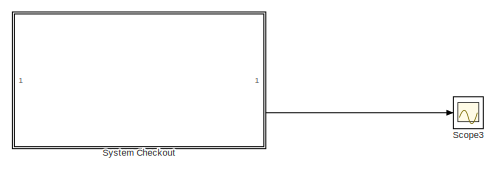
[diagram: root canvas - part 1/2, top center region]
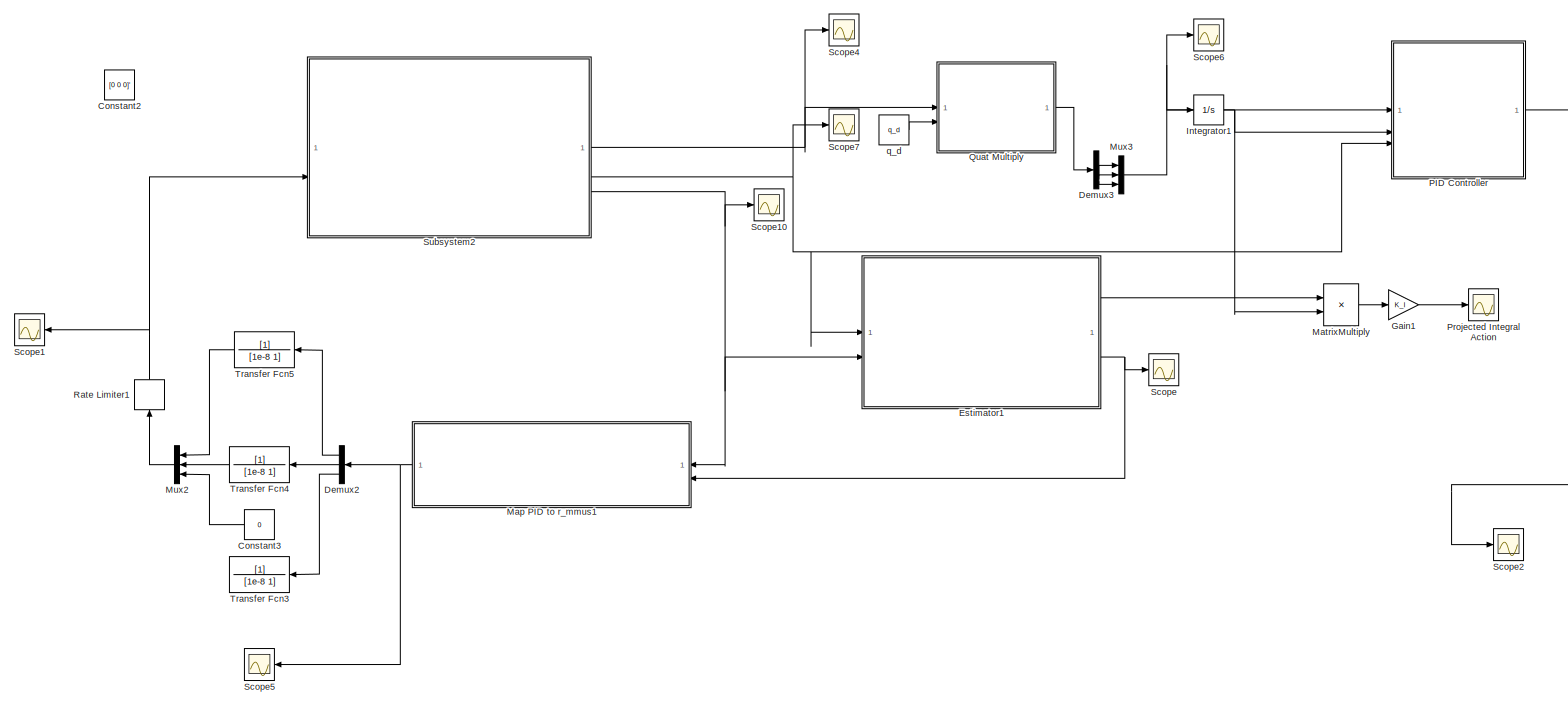
[diagram: root canvas - part 2/2, full width, middle band]
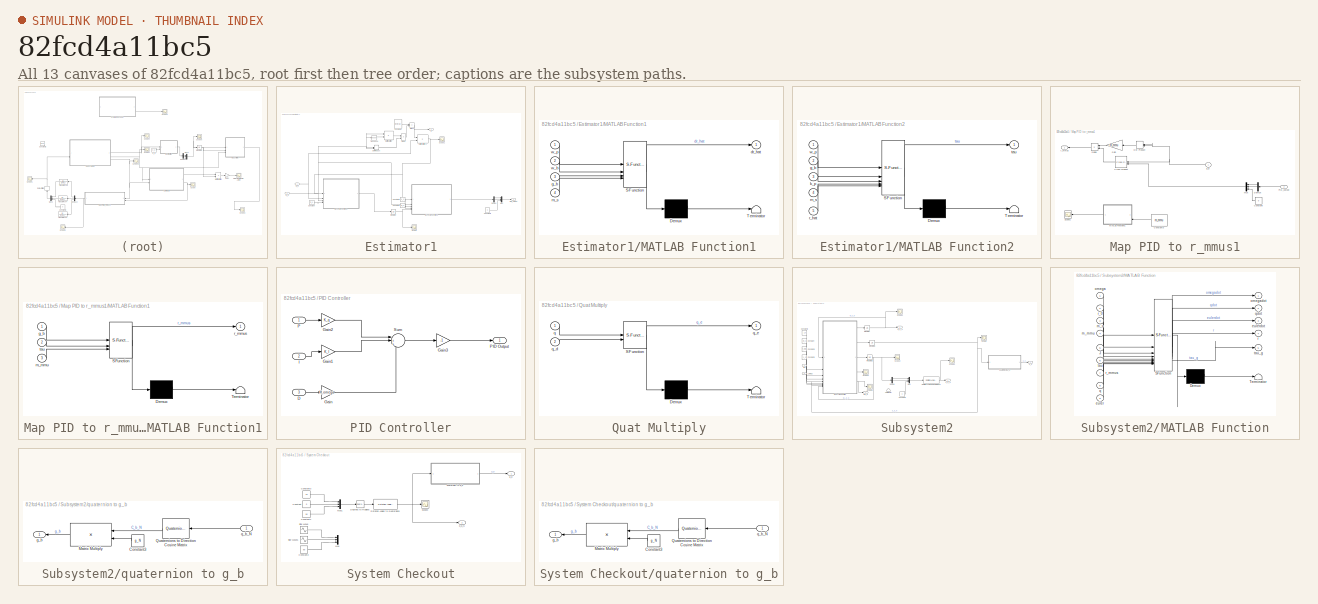
[diagram: thumbnail index - all 13 canvases of the model, root first then tree order]
MODEL slx_82fcd4a11bc5
KIND model
CONFIG AbsTol = auto
CONFIG EnableMultiTasking = off
CONFIG FixedStep = auto
CONFIG MaxStep = auto
CONFIG MinStep = auto
CONFIG RelTol = 1e-3
CONFIG SampleTimeConstraint = Unconstrained
CONFIG SolverName = ode15s
CONFIG StartTime = 0.0
CONFIG StopTime = t_sim
BLOCK [Constant] Constant2
  Value = [0 0 0]'
BLOCK [Constant] Constant3
  NameLocation = top
  Value = 0
BLOCK [Demux] Demux2
  NameLocation = top
  Outputs = 3
BLOCK [Demux] Demux3
BLOCK [SubSystem] Estimator1
BLOCK [Constant] Estimator1/Constant
  Value = m_s
BLOCK [Constant] Estimator1/Constant1
  Value = m_s
BLOCK [Constant] Estimator1/Constant2
  Value = k_p
BLOCK [Constant] Estimator1/Constant3
  Value = 0
BLOCK [Constant] Estimator1/Constant4
  Value = eye(3)
BLOCK [Demux] Estimator1/Demux
  Outputs = 3
BLOCK [Product] Estimator1/Divide
  Inputs = */
BLOCK [DotProduct] Estimator1/Dot Product
  OutDataTypeStr = Inherit: Inherit via internal rule
BLOCK [Integrator] Estimator1/Integrator
  InitialCondition = r_hat_0
BLOCK [SubSystem] Estimator1/MATLAB Function1
  ErrorFcn = Stateflow.Translate.translate
  PermitHierarchicalResolution = ExplicitOnly
  SFBlockType = MATLAB Function
  TreatAsAtomicUnit = on
BLOCK [Demux] Estimator1/MATLAB Function1/ Demux 
  Outputs = 1
BLOCK [S-Function] Estimator1/MATLAB Function1/ SFunction 
  EnableBusSupport = on
  FunctionName = sf_sfun
  PortCounts = [4 2]
  SFcnIsStateOwnerBlock = off
  SFunctionDeploymentMode = off
  Tag = Stateflow S-Function 9
BLOCK [Terminator] Estimator1/MATLAB Function1/ Terminator 
BLOCK [Outport] Estimator1/MATLAB Function1/dr_hat
BLOCK [Inport] Estimator1/MATLAB Function1/g_b
  Port = 3
BLOCK [Inport] Estimator1/MATLAB Function1/m_s
  Port = 4
BLOCK [Inport] Estimator1/MATLAB Function1/w_b
  Port = 2
BLOCK [Inport] Estimator1/MATLAB Function1/w_p
BLOCK [SubSystem] Estimator1/MATLAB Function2
  ErrorFcn = Stateflow.Translate.translate
  PermitHierarchicalResolution = ExplicitOnly
  SFBlockType = MATLAB Function
  TreatAsAtomicUnit = on
BLOCK [Demux] Estimator1/MATLAB Function2/ Demux 
  Outputs = 1
BLOCK [S-Function] Estimator1/MATLAB Function2/ SFunction 
  EnableBusSupport = on
  FunctionName = sf_sfun
  PortCounts = [5 2]
  SFcnIsStateOwnerBlock = off
  SFunctionDeploymentMode = off
  Tag = Stateflow S-Function 8
BLOCK [Terminator] Estimator1/MATLAB Function2/ Terminator 
BLOCK [Inport] Estimator1/MATLAB Function2/g_b
  Port = 2
BLOCK [Inport] Estimator1/MATLAB Function2/k_p
  Port = 3
BLOCK [Inport] Estimator1/MATLAB Function2/m_s
  Port = 4
BLOCK [Inport] Estimator1/MATLAB Function2/r_hat
  Port = 5
BLOCK [Outport] Estimator1/MATLAB Function2/tau
BLOCK [Inport] Estimator1/MATLAB Function2/w_p
BLOCK [Product] Estimator1/MatrixMultiply
  Multiplication = Matrix(*)
BLOCK [Product] Estimator1/MatrixMultiply1
  Multiplication = Matrix(*)
BLOCK [Sum] Estimator1/Minus
  IconShape = rectangular
  Inputs = +-
BLOCK [Mux] Estimator1/Mux
  DisplayOption = bar
  Inputs = 3
BLOCK [Outport] Estimator1/P
BLOCK [Outport] Estimator1/PID_output
  Port = 2
BLOCK [Scope] Estimator1/Scope
  Floating = off
  NumInputPorts = 1
  ScopeSpecificationString = Simulink.scopes.TimeScopeBlockCfg('CurrentConfiguration', extmgr.ConfigurationSet(extmgr.Configuration('Core','General UI',true),extmgr.Configuration('Core','Source UI',true),extmgr.Configuration('Sources','WiredSimulink',true,'DataLoggingVariableName','ScopeData2'),extmgr.Configuration('Visuals','Time Domain',true,'SerializedDisplays',{struct('MinYLimReal','-36.35891','MaxYLimReal','326.77194','Y...<+1584ch>
BLOCK [Scope] Estimator1/Scope1
  Floating = off
  NumInputPorts = 1
  ScopeSpecificationString = Simulink.scopes.TimeScopeBlockCfg('CurrentConfiguration', extmgr.ConfigurationSet(extmgr.Configuration('Core','General UI',true),extmgr.Configuration('Core','Source UI',true),extmgr.Configuration('Sources','WiredSimulink',true,'DataLoggingVariableName','ScopeData3'),extmgr.Configuration('Visuals','Time Domain',true,'SerializedDisplays',{struct('MinYLimReal','-1.22598','MaxYLimReal','1.21547','YLab...<+1573ch>
BLOCK [Math] Estimator1/Transpose
  Operator = transpose
BLOCK [Inport] Estimator1/g_b
  Port = 2
BLOCK [Inport] Estimator1/w_b
BLOCK [Gain] Gain1
  Gain = K_I
BLOCK [Integrator] Integrator1
  InitialCondition = [0,0,0]'
BLOCK [SubSystem] Map PID to r_mmus1
BLOCK [Constant] Map PID to r_mmus1/Constant
  NameLocation = top
  Value = 0
BLOCK [Constant] Map PID to r_mmus1/Constant3
  Commented = on
  NameLocation = top
  Value = m_mmu
BLOCK [Reference] Map PID to r_mmus1/Cross Product  REF=matrix_library/Cross Product
  LibrarySourceBlock = simulink/Matrix\nOperations/Cross Product
  NameLocation = top
  SourceBlock = matrix_library/Cross Product
  SourceType = CrossProduct
BLOCK [Demux] Map PID to r_mmus1/Demux
  NameLocation = top
  Outputs = 3
BLOCK [Product] Map PID to r_mmus1/Divide
  Inputs = /*
  NameLocation = top
BLOCK [DotProduct] Map PID to r_mmus1/Dot Product
  NameLocation = top
  OutDataTypeStr = Inherit: Inherit via internal rule
BLOCK [Gain] Map PID to r_mmus1/Gain
  Gain = m_mmu
  NameLocation = top
BLOCK [SubSystem] Map PID to r_mmus1/MATLAB Function1
  Commented = on
  ErrorFcn = Stateflow.Translate.translate
  NameLocation = top
  PermitHierarchicalResolution = ExplicitOnly
  SFBlockType = MATLAB Function
  TreatAsAtomicUnit = on
BLOCK [Demux] Map PID to r_mmus1/MATLAB Function1/ Demux 
  Outputs = 1
BLOCK [S-Function] Map PID to r_mmus1/MATLAB Function1/ SFunction 
  EnableBusSupport = on
  FunctionName = sf_sfun
  PortCounts = [3 2]
  SFcnIsStateOwnerBlock = off
  SFunctionDeploymentMode = off
  Tag = Stateflow S-Function 1
BLOCK [Terminator] Map PID to r_mmus1/MATLAB Function1/ Terminator 
BLOCK [Inport] Map PID to r_mmus1/MATLAB Function1/g_b
BLOCK [Inport] Map PID to r_mmus1/MATLAB Function1/m_mmu
  Port = 3
BLOCK [Outport] Map PID to r_mmus1/MATLAB Function1/r_mmus
BLOCK [Inport] Map PID to r_mmus1/MATLAB Function1/tau
  Port = 2
BLOCK [Mux] Map PID to r_mmus1/Mux
  DisplayOption = bar
  Inputs = 3
  NameLocation = top
BLOCK [Inport] Map PID to r_mmus1/PID_output
  Port = 2
BLOCK [Scope] Map PID to r_mmus1/Scope1
  Commented = on
  Floating = off
  NameLocation = top
  NumInputPorts = 1
  ScopeSpecificationString = Simulink.scopes.TimeScopeBlockCfg('CurrentConfiguration', extmgr.ConfigurationSet(extmgr.Configuration('Core','General UI',true),extmgr.Configuration('Core','Source UI',true),extmgr.Configuration('Sources','WiredSimulink',true,'DataLoggingVariableName','ScopeData2'),extmgr.Configuration('Visuals','Time Domain',true,'SerializedDisplays',{struct('MinYLimReal','-0.07872','MaxYLimReal','0.00875','YLab...<+1537ch>
BLOCK [Inport] Map PID to r_mmus1/g_b
BLOCK [Outport] Map PID to r_mmus1/r_mmus
BLOCK [Product] MatrixMultiply
  Multiplication = Matrix(*)
BLOCK [Mux] Mux2
  DisplayOption = bar
  Inputs = 3
  NameLocation = top
BLOCK [Mux] Mux3
  DisplayOption = bar
  Inputs = 3
BLOCK [SubSystem] PID Controller
BLOCK [Inport] PID Controller/D
  Port = 3
BLOCK [Gain] PID Controller/Gain
  Gain = K_omega
BLOCK [Gain] PID Controller/Gain1
  Gain = K_I
BLOCK [Gain] PID Controller/Gain2
  Gain = K_q
BLOCK [Gain] PID Controller/Gain3
  Gain = -1
BLOCK [Inport] PID Controller/I
  Port = 2
BLOCK [Inport] PID Controller/P
BLOCK [Outport] PID Controller/PID Output
BLOCK [Sum] PID Controller/Sum
  Inputs = |+++
BLOCK [Scope] Projected Integral Action
  Floating = off
  NumInputPorts = 1
  ScopeSpecificationString = Simulink.scopes.TimeScopeBlockCfg('CurrentConfiguration', extmgr.ConfigurationSet(extmgr.Configuration('Core','General UI',true),extmgr.Configuration('Core','Source UI',true),extmgr.Configuration('Sources','WiredSimulink',true,'DataLoggingVariableName','ScopeData3'),extmgr.Configuration('Visuals','Time Domain',true,'SerializedDisplays',{struct('MinYLimReal','-132.65379','MaxYLimReal','124.05273','...<+1555ch>
BLOCK [SubSystem] Quat Multiply
  ErrorFcn = Stateflow.Translate.translate
  PermitHierarchicalResolution = ExplicitOnly
  SFBlockType = MATLAB Function
  TreatAsAtomicUnit = on
BLOCK [Demux] Quat Multiply/ Demux 
  Outputs = 1
BLOCK [S-Function] Quat Multiply/ SFunction 
  EnableBusSupport = on
  FunctionName = sf_sfun
  PortCounts = [2 2]
  SFcnIsStateOwnerBlock = off
  SFunctionDeploymentMode = off
  Tag = Stateflow S-Function 3
BLOCK [Terminator] Quat Multiply/ Terminator 
BLOCK [Inport] Quat Multiply/q
BLOCK [Inport] Quat Multiply/q_d
  Port = 2
BLOCK [Outport] Quat Multiply/q_e
BLOCK [RateLimiter] Rate Limiter1
  FallingSlewLimit = -0.030
  NameLocation = right
  RisingSlewLimit = 0.030
  SampleTimeMode = inherited
BLOCK [Scope] Scope
  Floating = off
  NumInputPorts = 1
  ScopeSpecificationString = Simulink.scopes.TimeScopeBlockCfg('CurrentConfiguration', extmgr.ConfigurationSet(extmgr.Configuration('Core','General UI',true),extmgr.Configuration('Core','Source UI',true),extmgr.Configuration('Sources','WiredSimulink',true,'DataLoggingVariableName','ScopeData1'),extmgr.Configuration('Visuals','Time Domain',true,'SerializedDisplays',{struct('MinYLimReal','-81064.64447','MaxYLimReal','82089.2197...<+1737ch>
BLOCK [Scope] Scope1
  Floating = off
  NameLocation = top
  NumInputPorts = 1
  ScopeSpecificationString = Simulink.scopes.TimeScopeBlockCfg('CurrentConfiguration', extmgr.ConfigurationSet(extmgr.Configuration('Core','General UI',true),extmgr.Configuration('Core','Source UI',true),extmgr.Configuration('Sources','WiredSimulink',true,'DataLoggingVariableName','r_mmus','DataLogging',true,'DataLoggingSaveFormat','StructureWithTime'),extmgr.Configuration('Visuals','Time Domain',true,'SerializedDisplays',{st...<+1595ch>
BLOCK [Scope] Scope10
  Floating = off
  NumInputPorts = 1
  ScopeSpecificationString = Simulink.scopes.TimeScopeBlockCfg('CurrentConfiguration', extmgr.ConfigurationSet(extmgr.Configuration('Core','General UI',true),extmgr.Configuration('Core','Source UI',true),extmgr.Configuration('Sources','WiredSimulink',true,'DataLoggingVariableName','ScopeData5'),extmgr.Configuration('Visuals','Time Domain',true,'SerializedDisplays',{struct('MinYLimReal','-12.02857','MaxYLimReal','10.15939','YL...<+1576ch>
BLOCK [Scope] Scope2
  Floating = off
  NumInputPorts = 1
  ScopeSpecificationString = Simulink.scopes.TimeScopeBlockCfg('CurrentConfiguration', extmgr.ConfigurationSet(extmgr.Configuration('Core','General UI',true),extmgr.Configuration('Core','Source UI',true),extmgr.Configuration('Sources','WiredSimulink',true,'DataLoggingVariableName','ScopeData1'),extmgr.Configuration('Visuals','Time Domain',true,'SerializedDisplays',{struct('MinYLimReal','-88.364','MaxYLimReal','148.98158','YLa...<+1587ch>
BLOCK [Scope] Scope3
  Commented = on
  Floating = off
  NumInputPorts = 1
  ScopeSpecificationString = Simulink.scopes.TimeScopeBlockCfg('CurrentConfiguration', extmgr.ConfigurationSet(extmgr.Configuration('Core','General UI',true),extmgr.Configuration('Core','Source UI',true),extmgr.Configuration('Sources','WiredSimulink',true,'DataLoggingVariableName','ScopeData1'),extmgr.Configuration('Visuals','Time Domain',true,'SerializedDisplays',{struct('MinYLimReal','-0.15738','MaxYLimReal','0.80017','YLab...<+1754ch>
BLOCK [Scope] Scope4
  Floating = off
  NumInputPorts = 1
  ScopeSpecificationString = Simulink.scopes.TimeScopeBlockCfg('CurrentConfiguration', extmgr.ConfigurationSet(extmgr.Configuration('Core','General UI',true),extmgr.Configuration('Core','Source UI',true),extmgr.Configuration('Sources','WiredSimulink',true,'DataLoggingVariableName','ScopeData3'),extmgr.Configuration('Visuals','Time Domain',true,'SerializedDisplays',{struct('MinYLimReal','-0.89035','MaxYLimReal','1.21','YLabelR...<+1569ch>
BLOCK [Scope] Scope5
  Floating = off
  NameLocation = top
  NumInputPorts = 1
  ScopeSpecificationString = Simulink.scopes.TimeScopeBlockCfg('CurrentConfiguration', extmgr.ConfigurationSet(extmgr.Configuration('Core','General UI',true),extmgr.Configuration('Core','Source UI',true),extmgr.Configuration('Sources','WiredSimulink',true,'DataLoggingVariableName','ScopeData2'),extmgr.Configuration('Visuals','Time Domain',true,'SerializedDisplays',{struct('MinYLimReal','-447.21945','MaxYLimReal','3300.05194',...<+1532ch>
BLOCK [Scope] Scope6
  Floating = off
  NumInputPorts = 1
  ScopeSpecificationString = Simulink.scopes.TimeScopeBlockCfg('CurrentConfiguration', extmgr.ConfigurationSet(extmgr.Configuration('Core','General UI',true),extmgr.Configuration('Core','Source UI',true),extmgr.Configuration('Sources','WiredSimulink',true,'DataLoggingVariableName','ScopeData1'),extmgr.Configuration('Visuals','Time Domain',true,'SerializedDisplays',{struct('MinYLimReal','-0.81616','MaxYLimReal','0.54233','YLab...<+1544ch>
BLOCK [Scope] Scope7
  Floating = off
  NumInputPorts = 1
  ScopeSpecificationString = Simulink.scopes.TimeScopeBlockCfg('CurrentConfiguration', extmgr.ConfigurationSet(extmgr.Configuration('Core','General UI',true),extmgr.Configuration('Core','Source UI',true),extmgr.Configuration('Sources','WiredSimulink',true,'DataLoggingVariableName','ScopeData2'),extmgr.Configuration('Visuals','Time Domain',true,'SerializedDisplays',{struct('MinYLimReal','-1.22815','MaxYLimReal','1.22997','YLab...<+1576ch>
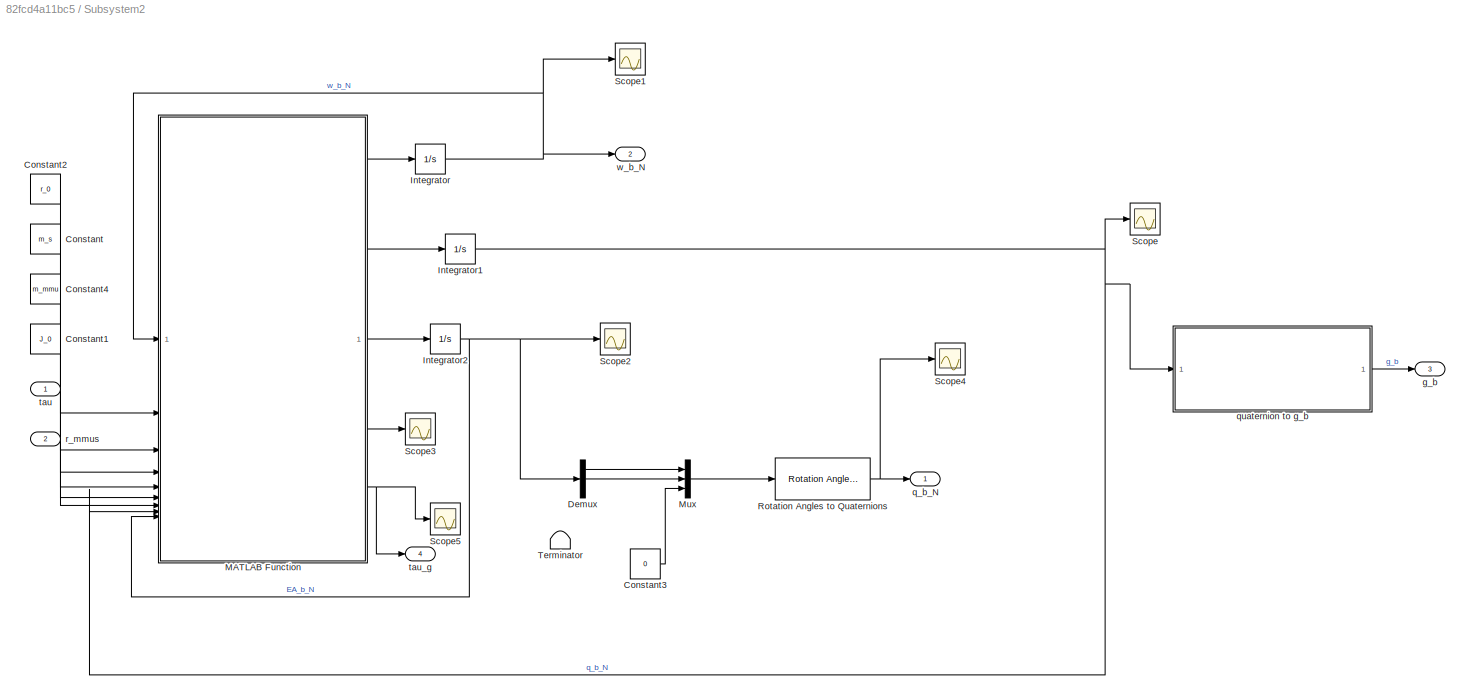
BLOCK [SubSystem] Subsystem2
BLOCK [Constant] Subsystem2/Constant
  Value = m_s
BLOCK [Constant] Subsystem2/Constant1
  Value = J_0
BLOCK [Constant] Subsystem2/Constant2
  Value = r_0
BLOCK [Constant] Subsystem2/Constant3
  Value = 0
BLOCK [Constant] Subsystem2/Constant4
  Value = m_mmu
BLOCK [Demux] Subsystem2/Demux
  Outputs = 3
BLOCK [Integrator] Subsystem2/Integrator
  InitialCondition = omega_0
BLOCK [Integrator] Subsystem2/Integrator1
  InitialCondition = q_0
  NameLocation = top
BLOCK [Integrator] Subsystem2/Integrator2
  InitialCondition = EA_0
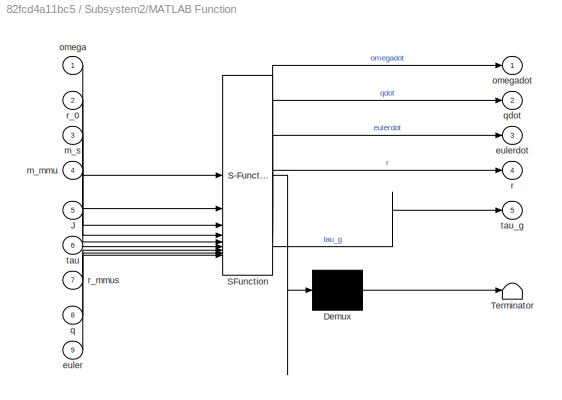
BLOCK [SubSystem] Subsystem2/MATLAB Function
  ErrorFcn = Stateflow.Translate.translate
  PermitHierarchicalResolution = ExplicitOnly
  SFBlockType = MATLAB Function
  TreatAsAtomicUnit = on
BLOCK [Demux] Subsystem2/MATLAB Function/ Demux 
  Outputs = 1
BLOCK [S-Function] Subsystem2/MATLAB Function/ SFunction 
  EnableBusSupport = on
  FunctionName = sf_sfun
  PortCounts = [9 6]
  SFcnIsStateOwnerBlock = off
  SFunctionDeploymentMode = off
  Tag = Stateflow S-Function 4
BLOCK [Terminator] Subsystem2/MATLAB Function/ Terminator 
BLOCK [Inport] Subsystem2/MATLAB Function/J
  Port = 5
BLOCK [Inport] Subsystem2/MATLAB Function/euler
  Port = 9
BLOCK [Outport] Subsystem2/MATLAB Function/eulerdot
  Port = 3
BLOCK [Inport] Subsystem2/MATLAB Function/m_mmu
  Port = 4
BLOCK [Inport] Subsystem2/MATLAB Function/m_s
  Port = 3
BLOCK [Inport] Subsystem2/MATLAB Function/omega
BLOCK [Outport] Subsystem2/MATLAB Function/omegadot
BLOCK [Inport] Subsystem2/MATLAB Function/q
  Port = 8
BLOCK [Outport] Subsystem2/MATLAB Function/qdot
  Port = 2
BLOCK [Outport] Subsystem2/MATLAB Function/r
  Port = 4
BLOCK [Inport] Subsystem2/MATLAB Function/r_0
  Port = 2
BLOCK [Inport] Subsystem2/MATLAB Function/r_mmus
  Port = 7
BLOCK [Inport] Subsystem2/MATLAB Function/tau
  Port = 6
BLOCK [Outport] Subsystem2/MATLAB Function/tau_g
  Port = 5
BLOCK [Mux] Subsystem2/Mux
  DisplayOption = bar
  Inputs = 3
BLOCK [Reference] Subsystem2/Rotation Angles to Quaternions  REF=sharedtransform/Rotation Angles to Quaternions
  AttributesFormatString = Rotation Order: %<rotationOrder>
  LibrarySourceBlock = aerolibtransform2/Rotation Angles to Quaternions
  SourceBlock = sharedtransform/Rotation Angles to Quaternions
  SourceType = Ang2Quat
BLOCK [Scope] Subsystem2/Scope
  Floating = off
  NumInputPorts = 1
  ScopeSpecificationString = Simulink.scopes.TimeScopeBlockCfg('CurrentConfiguration', extmgr.ConfigurationSet(extmgr.Configuration('Core','General UI',true),extmgr.Configuration('Core','Source UI',true),extmgr.Configuration('Sources','WiredSimulink',true,'DataLogging',true,'DataLoggingVariableName','q_b_N','DataLoggingSaveFormat','StructureWithTime'),extmgr.Configuration('Visuals','Time Domain',true,'SerializedDisplays',{str...<+1598ch>
BLOCK [Scope] Subsystem2/Scope1
  Floating = off
  NumInputPorts = 1
  ScopeSpecificationString = Simulink.scopes.TimeScopeBlockCfg('CurrentConfiguration', extmgr.ConfigurationSet(extmgr.Configuration('Core','General UI',true),extmgr.Configuration('Core','Source UI',true),extmgr.Configuration('Sources','WiredSimulink',true,'DataLoggingVariableName','ScopeData1'),extmgr.Configuration('Visuals','Time Domain',true,'SerializedDisplays',{struct('MinYLimReal','-1.14331','MaxYLimReal','1.14978','YLab...<+1573ch>
BLOCK [Scope] Subsystem2/Scope2
  Floating = off
  NumInputPorts = 1
  ScopeSpecificationString = Simulink.scopes.TimeScopeBlockCfg('CurrentConfiguration', extmgr.ConfigurationSet(extmgr.Configuration('Core','General UI',true),extmgr.Configuration('Core','Source UI',true),extmgr.Configuration('Sources','WiredSimulink',true,'DataLoggingVariableName','EA_b_N','DataLogging',true,'DataLoggingSaveFormat','StructureWithTime'),extmgr.Configuration('Visuals','Time Domain',true,'SerializedDisplays',{st...<+1624ch>
BLOCK [Scope] Subsystem2/Scope3
  Floating = off
  NumInputPorts = 1
  ScopeSpecificationString = Simulink.scopes.TimeScopeBlockCfg('CurrentConfiguration', extmgr.ConfigurationSet(extmgr.Configuration('Core','General UI',true),extmgr.Configuration('Core','Source UI',true),extmgr.Configuration('Sources','WiredSimulink',true,'DataLoggingVariableName','r_b','DataLogging',true,'DataLoggingSaveFormat','StructureWithTime'),extmgr.Configuration('Visuals','Time Domain',true,'SerializedDisplays',{struc...<+1615ch>
BLOCK [Scope] Subsystem2/Scope4
  Floating = off
  NumInputPorts = 1
  ScopeSpecificationString = Simulink.scopes.TimeScopeBlockCfg('CurrentConfiguration', extmgr.ConfigurationSet(extmgr.Configuration('Core','General UI',true),extmgr.Configuration('Core','Source UI',true),extmgr.Configuration('Sources','WiredSimulink',true,'DataLoggingVariableName','ScopeData2'),extmgr.Configuration('Visuals','Time Domain',true,'SerializedDisplays',{struct('MinYLimReal','-0.22241','MaxYLimReal','1.13582','YLab...<+1627ch>
BLOCK [Scope] Subsystem2/Scope5
  Floating = off
  NumInputPorts = 1
  ScopeSpecificationString = Simulink.scopes.TimeScopeBlockCfg('CurrentConfiguration', extmgr.ConfigurationSet(extmgr.Configuration('Core','General UI',true),extmgr.Configuration('Core','Source UI',true),extmgr.Configuration('Sources','WiredSimulink',true,'DataLoggingVariableName','ScopeData1'),extmgr.Configuration('Visuals','Time Domain',true,'SerializedDisplays',{struct('MinYLimReal','-3.13148','MaxYLimReal','3.59611','YLab...<+1673ch>
BLOCK [Terminator] Subsystem2/Terminator
BLOCK [Outport] Subsystem2/g_b
  Port = 3
BLOCK [Outport] Subsystem2/q_b_N
BLOCK [SubSystem] Subsystem2/quaternion to g_b
  NameLocation = top
BLOCK [Constant] Subsystem2/quaternion to g_b/Constant3
  NameLocation = top
  Value = g_N
BLOCK [Product] Subsystem2/quaternion to g_b/Matrix Multiply
  Multiplication = Matrix(*)
  NameLocation = top
BLOCK [Reference] Subsystem2/quaternion to g_b/Quaternions to Direction Cosine Matrix  REF=sharedtransform/Quaternions to 
Direction Cosine Matrix
  NameLocation = top
  SourceBlock = sharedtransform/Quaternions to \nDirection Cosine Matrix
  SourceType = Quaternion2DCM
BLOCK [Outport] Subsystem2/quaternion to g_b/g_b
  NameLocation = top
BLOCK [Inport] Subsystem2/quaternion to g_b/q_b_N
  NameLocation = top
BLOCK [Inport] Subsystem2/r_mmus
  Port = 2
BLOCK [Inport] Subsystem2/tau
BLOCK [Outport] Subsystem2/tau_g
  Port = 4
BLOCK [Outport] Subsystem2/w_b_N
  Port = 2
BLOCK [SubSystem] System Checkout
  Commented = on
BLOCK [Constant] System Checkout/Constant
  Value = 0
BLOCK [Constant] System Checkout/Constant1
  Value = 90
BLOCK [Constant] System Checkout/Constant2
  Commented = on
  Value = 90
BLOCK [Constant] System Checkout/Constant3
  Value = 10
BLOCK [Reference] System Checkout/Degrees to Radians  REF=simulink_extras/Transformations/Degrees to
Radians
  SourceBlock = simulink_extras/Transformations/Degrees to\nRadians
  SourceType = DegreesToRadians
BLOCK [Mux] System Checkout/Mux
  Commented = on
  DisplayOption = bar
  Inputs = 3
BLOCK [Mux] System Checkout/Mux1
  DisplayOption = bar
  Inputs = 3
BLOCK [Reference] System Checkout/Rotation Angles to Quaternions  REF=sharedtransform/Rotation Angles to Quaternions
  AttributesFormatString = Rotation Order: %<rotationOrder>
  LibrarySourceBlock = aerolibtransform2/Rotation Angles to Quaternions
  SourceBlock = sharedtransform/Rotation Angles to Quaternions
  SourceType = Ang2Quat
BLOCK [Scope] System Checkout/Scope3
  Floating = off
  NumInputPorts = 1
  ScopeSpecificationString = Simulink.scopes.TimeScopeBlockCfg('CurrentConfiguration', extmgr.ConfigurationSet(extmgr.Configuration('Core','General UI',true),extmgr.Configuration('Core','Source UI',true),extmgr.Configuration('Sources','WiredSimulink',true,'DataLoggingVariableName','ScopeData2'),extmgr.Configuration('Visuals','Time Domain',true,'SerializedDisplays',{struct('MinYLimReal','-0.15738','MaxYLimReal','0.80017','YLab...<+1796ch>
BLOCK [Sin] System Checkout/Sine Wave
  Amplitude = 90
  Commented = on
  Frequency = (2*pi/2)/10
  Offset = 0.1
  SampleTime = 0.0125
  Samples = 50
  SineType = Sample based
BLOCK [Sin] System Checkout/Sine Wave1
  Amplitude = 0
  Commented = on
  Frequency = (2*pi/2)/10
  SampleTime = 0.1
  Samples = 50
  SineType = Sample based
BLOCK [Outport] System Checkout/g_b
BLOCK [Outport] System Checkout/q_b_N
  Port = 2
BLOCK [SubSystem] System Checkout/quaternion to g_b
  NameLocation = top
BLOCK [Constant] System Checkout/quaternion to g_b/Constant3
  NameLocation = top
  Value = g_N
BLOCK [Product] System Checkout/quaternion to g_b/Matrix Multiply
  Multiplication = Matrix(*)
  NameLocation = top
BLOCK [Reference] System Checkout/quaternion to g_b/Quaternions to Direction Cosine Matrix  REF=sharedtransform/Quaternions to 
Direction Cosine Matrix
  NameLocation = top
  SourceBlock = sharedtransform/Quaternions to \nDirection Cosine Matrix
  SourceType = Quaternion2DCM
BLOCK [Outport] System Checkout/quaternion to g_b/g_b
  NameLocation = top
BLOCK [Inport] System Checkout/quaternion to g_b/q_b_N
  NameLocation = top
BLOCK [TransferFcn] Transfer Fcn3
  Denominator = [1e-8 1]
  NameLocation = top
BLOCK [TransferFcn] Transfer Fcn4
  Denominator = [1e-8 1]
  NameLocation = top
BLOCK [TransferFcn] Transfer Fcn5
  Denominator = [1e-8 1]
  NameLocation = top
BLOCK [Constant] q_d
  Value = q_d
LINE Constant3:1 -> Mux2:3
LINE Demux2:1 -> Transfer Fcn5:1
LINE Demux2:2 -> Transfer Fcn4:1
LINE Demux2:3 -> Transfer Fcn3:1
LINE Demux3:2 -> Mux3:1
LINE Demux3:3 -> Mux3:2
LINE Demux3:4 -> Mux3:3
LINE Estimator1/Constant1:1 -> Estimator1/MATLAB Function2:4
LINE Estimator1/Constant2:1 -> Estimator1/MATLAB Function2:3
LINE Estimator1/Constant3:1 -> Estimator1/Mux:3
LINE Estimator1/Constant4:1 -> Estimator1/Minus:1
LINE Estimator1/Constant:1 -> Estimator1/MATLAB Function1:4
LINE Estimator1/Demux:1 -> Estimator1/Mux:1
LINE Estimator1/Demux:2 -> Estimator1/Mux:2
LINE Estimator1/Divide:1 -> Estimator1/Minus:2
LINE Estimator1/Dot Product:1 -> Estimator1/Divide:2
NET Estimator1/Integrator:1 -> Estimator1/MATLAB Function2:5, Estimator1/Scope:1
LINE Estimator1/MATLAB Function1:1 -> Estimator1/Integrator:1
LINE Estimator1/MATLAB Function2:1 -> Estimator1/Demux:1
NET Estimator1/MatrixMultiply1:1 -> Estimator1/MATLAB Function1:1, Estimator1/MATLAB Function2:1, Estimator1/Scope1:1
LINE Estimator1/MatrixMultiply:1 -> Estimator1/Divide:1
NET Estimator1/Minus:1 -> Estimator1/MatrixMultiply1:1, Estimator1/P:1
LINE Estimator1/Mux:1 -> Estimator1/PID_output:1
LINE Estimator1/Transpose:1 -> Estimator1/MatrixMultiply:2
NET Estimator1/g_b:1 -> Estimator1/Dot Product:1, Estimator1/Dot Product:2, Estimator1/MATLAB Function1:3, Estimator1/MATLAB Function2:2, Estimator1/MatrixMultiply:1, Estimator1/Transpose:1
NET Estimator1/w_b:1 -> Estimator1/MATLAB Function1:2, Estimator1/MatrixMultiply1:2
LINE Estimator1:1 -> MatrixMultiply:1
NET Estimator1:2 -> Map PID to r_mmus1:2, Scope:1
LINE Gain1:1 -> Projected Integral Action:1
NET Integrator1:1 -> MatrixMultiply:2, PID Controller:2
LINE Map PID to r_mmus1/Constant3:1 -> Map PID to r_mmus1/MATLAB Function1:3
LINE Map PID to r_mmus1/Constant:1 -> Map PID to r_mmus1/Mux:3
LINE Map PID to r_mmus1/Cross Product:1 -> Map PID to r_mmus1/Divide:2
LINE Map PID to r_mmus1/Demux:1 -> Map PID to r_mmus1/Mux:1
LINE Map PID to r_mmus1/Demux:2 -> Map PID to r_mmus1/Mux:2
LINE Map PID to r_mmus1/Divide:1 -> Map PID to r_mmus1/r_mmus:1
LINE Map PID to r_mmus1/Dot Product:1 -> Map PID to r_mmus1/Gain:1
LINE Map PID to r_mmus1/Gain:1 -> Map PID to r_mmus1/Divide:1
LINE Map PID to r_mmus1/MATLAB Function1:1 -> Map PID to r_mmus1/Scope1:1
LINE Map PID to r_mmus1/Mux:1 -> Map PID to r_mmus1/Cross Product:2
LINE Map PID to r_mmus1/PID_output:1 -> Map PID to r_mmus1/Demux:1
NET Map PID to r_mmus1/g_b:1 -> Map PID to r_mmus1/Cross Product:1, Map PID to r_mmus1/Dot Product:1, Map PID to r_mmus1/Dot Product:2
NET Map PID to r_mmus1:1 -> Demux2:1, Scope5:1
LINE MatrixMultiply:1 -> Gain1:1
LINE Mux2:1 -> Rate Limiter1:1
NET Mux3:1 -> Integrator1:1, PID Controller:1, Scope6:1
LINE PID Controller/D:1 -> PID Controller/Gain:1
LINE PID Controller/Gain1:1 -> PID Controller/Sum:2
LINE PID Controller/Gain2:1 -> PID Controller/Sum:1
LINE PID Controller/Gain3:1 -> PID Controller/PID Output:1
LINE PID Controller/Gain:1 -> PID Controller/Sum:3
LINE PID Controller/I:1 -> PID Controller/Gain1:1
LINE PID Controller/P:1 -> PID Controller/Gain2:1
LINE PID Controller/Sum:1 -> PID Controller/Gain3:1
LINE PID Controller:1 -> Scope2:1
LINE Quat Multiply:1 -> Demux3:1
NET Rate Limiter1:1 -> Scope1:1, Subsystem2:2
LINE Subsystem2/Constant1:1 -> Subsystem2/MATLAB Function:5
LINE Subsystem2/Constant2:1 -> Subsystem2/MATLAB Function:2
LINE Subsystem2/Constant3:1 -> Subsystem2/Mux:3
LINE Subsystem2/Constant4:1 -> Subsystem2/MATLAB Function:4
LINE Subsystem2/Constant:1 -> Subsystem2/MATLAB Function:3
LINE Subsystem2/Demux:1 -> Subsystem2/Mux:1
LINE Subsystem2/Demux:2 -> Subsystem2/Mux:2
NET Subsystem2/Integrator1:1 -> Subsystem2/MATLAB Function:8, Subsystem2/Scope:1, Subsystem2/quaternion to g_b:1
NET Subsystem2/Integrator2:1 -> Subsystem2/Demux:1, Subsystem2/MATLAB Function:9, Subsystem2/Scope2:1
NET Subsystem2/Integrator:1 -> Subsystem2/MATLAB Function:1, Subsystem2/Scope1:1, Subsystem2/w_b_N:1
LINE Subsystem2/MATLAB Function:1 -> Subsystem2/Integrator:1
LINE Subsystem2/MATLAB Function:2 -> Subsystem2/Integrator1:1
LINE Subsystem2/MATLAB Function:3 -> Subsystem2/Integrator2:1
LINE Subsystem2/MATLAB Function:4 -> Subsystem2/Scope3:1
NET Subsystem2/MATLAB Function:5 -> Subsystem2/Scope5:1, Subsystem2/tau_g:1
LINE Subsystem2/Mux:1 -> Subsystem2/Rotation Angles to Quaternions:1
NET Subsystem2/Rotation Angles to Quaternions:1 -> Subsystem2/Scope4:1, Subsystem2/q_b_N:1
LINE Subsystem2/quaternion to g_b/Constant3:1 -> Subsystem2/quaternion to g_b/Matrix Multiply:2
LINE Subsystem2/quaternion to g_b/Matrix Multiply:1 -> Subsystem2/quaternion to g_b/g_b:1
LINE Subsystem2/quaternion to g_b/Quaternions to Direction Cosine Matrix:1 -> Subsystem2/quaternion to g_b/Matrix Multiply:1
LINE Subsystem2/quaternion to g_b/q_b_N:1 -> Subsystem2/quaternion to g_b/Quaternions to Direction Cosine Matrix:1
LINE Subsystem2/quaternion to g_b:1 -> Subsystem2/g_b:1
LINE Subsystem2/r_mmus:1 -> Subsystem2/MATLAB Function:7
LINE Subsystem2/tau:1 -> Subsystem2/MATLAB Function:6
NET Subsystem2:1 -> Quat Multiply:1, Scope4:1
NET Subsystem2:2 -> Estimator1:1, PID Controller:3, Scope7:1
NET Subsystem2:3 -> Estimator1:2, Map PID to r_mmus1:1, Scope10:1
LINE System Checkout/Constant1:1 -> System Checkout/Mux1:3
LINE System Checkout/Constant2:1 -> System Checkout/Mux:3
LINE System Checkout/Constant3:1 -> System Checkout/Mux1:1
LINE System Checkout/Constant:1 -> System Checkout/Mux1:2
LINE System Checkout/Degrees to Radians:1 -> System Checkout/Rotation Angles to Quaternions:1
LINE System Checkout/Mux1:1 -> System Checkout/Degrees to Radians:1
NET System Checkout/Rotation Angles to Quaternions:1 -> System Checkout/Scope3:1, System Checkout/q_b_N:1, System Checkout/quaternion to g_b:1
LINE System Checkout/Sine Wave1:1 -> System Checkout/Mux:2
LINE System Checkout/Sine Wave:1 -> System Checkout/Mux:1
LINE System Checkout/quaternion to g_b/Constant3:1 -> System Checkout/quaternion to g_b/Matrix Multiply:2
LINE System Checkout/quaternion to g_b/Matrix Multiply:1 -> System Checkout/quaternion to g_b/g_b:1
LINE System Checkout/quaternion to g_b/Quaternions to Direction Cosine Matrix:1 -> System Checkout/quaternion to g_b/Matrix Multiply:1
LINE System Checkout/quaternion to g_b/q_b_N:1 -> System Checkout/quaternion to g_b/Quaternions to Direction Cosine Matrix:1
LINE System Checkout/quaternion to g_b:1 -> System Checkout/g_b:1
LINE System Checkout:2 -> Scope3:1
LINE Transfer Fcn4:1 -> Mux2:2
LINE Transfer Fcn5:1 -> Mux2:1
LINE q_d:1 -> Quat Multiply:2
note: NET lines group one-source signal fan-out (src -> all destinations, sorted); 1:1 wires keep LINE
CHART Map PID to r_mmus1/MATLAB Function1 states=1 transitions=1
  STATE_LABEL 'eML_blk_kernel()'
  STATE_LABEL 'SCRIPT:\nfunction r_mmus  = fcn(g_b,tau,m_mmu)\n\n    g_b_cross = [0 -g_b(3) g_b(2);\n               g_b(3) 0 -g_b(1);\n              -g_b(2) g_b(1) 0];\n\n    test = norm(g_b);\n\n% r_mmus = (g_b_cross*tau)./((norm(g_b)^2)*m_mmu);\nr_mmus = (g_b_cross*tau)./(dot(g_b,g_b).*m_mmu);\n% r_mmus = g_b./((norm(g_b)^2)*m_mmu);'
CHART Quat Multiply states=1 transitions=1
  STATE_LABEL 'eML_blk_kernel()'
  STATE_LABEL 'SCRIPT:\nfunction q_e = fcn(q,q_d)\n\nq_e = [q_d(1) -q_d(2) -q_d(3) -q_d(4);\n       q_d(2)  q_d(1) -q_d(4)  q_d(3);\n       q_d(3)  q_d(4)  q_d(1) -q_d(2);\n       q_d(4) -q_d(3)  q_d(2)  q_d(1);]*q;\n'
CHART Subsystem2/MATLAB Function states=1 transitions=1
  STATE_LABEL 'eML_blk_kernel()'
  STATE_LABEL 'SCRIPT:\nfunction [omegadot, qdot,eulerdot,r,tau_g] = fcn(omega,r_0,m_s,m_mmu,J,tau,r_mmus,q,euler)\n% Equations of motion developed in the work of Chesi.\n\ng = 9.81; % \n\n% Gravity vector in body-frame\nC_N_b = [2*q(1)^2-1+2*q(2)^2 2*q(2)*q(3)-2*q(1)*q(4) 2*q(2)*q(4)+2*q(1)*q(3);\n       2*q(2)*q(3)+2*q(1)*q(4) 2*q(1)^2-1+2*q(3)^2 2*q(3)*q(4)-2*q(1)*q(2);\n       2*q(2)*q(4)-2*q(1)*q(3) 2*q(3)*q(4)+2*q(...<+1001ch>'
CHART Estimator1/MATLAB Function2 states=1 transitions=1
  STATE_LABEL 'eML_blk_kernel()'
  STATE_LABEL 'SCRIPT:\nfunction tau = fcn(w_p,g_b,k_p,m_s,r_hat)\n\n\ng_cross =  [0      -g_b(3)  g_b(2);\n            g_b(3)  0      -g_b(1);\n           -g_b(2)  g_b(1)  0 ];\n\nkappa = -m_s.*g_cross;\n\ntau = kappa*r_hat - k_p*w_p;\n'
CHART Estimator1/MATLAB Function1 states=1 transitions=1
  STATE_LABEL 'eML_blk_kernel()'
  STATE_LABEL "SCRIPT:\nfunction dr_hat = fcn(w_p,w_b,g_b,m_s)\n\ng_cross =  [0      -g_b(3)  g_b(2);\n            g_b(3)  0      -g_b(1);\n           -g_b(2)  g_b(1)  0 ];\n\nkappa = -m_s*g_cross;\n\ndr_hat = kappa'*w_p;\n\n% dr_hat = m_s.*cross(g_b,w_b);"
CHART  states=0 transitions=0
CHART  states=0 transitions=0
CHART  states=0 transitions=0
CHART  states=0 transitions=0
CHART  states=0 transitions=0
